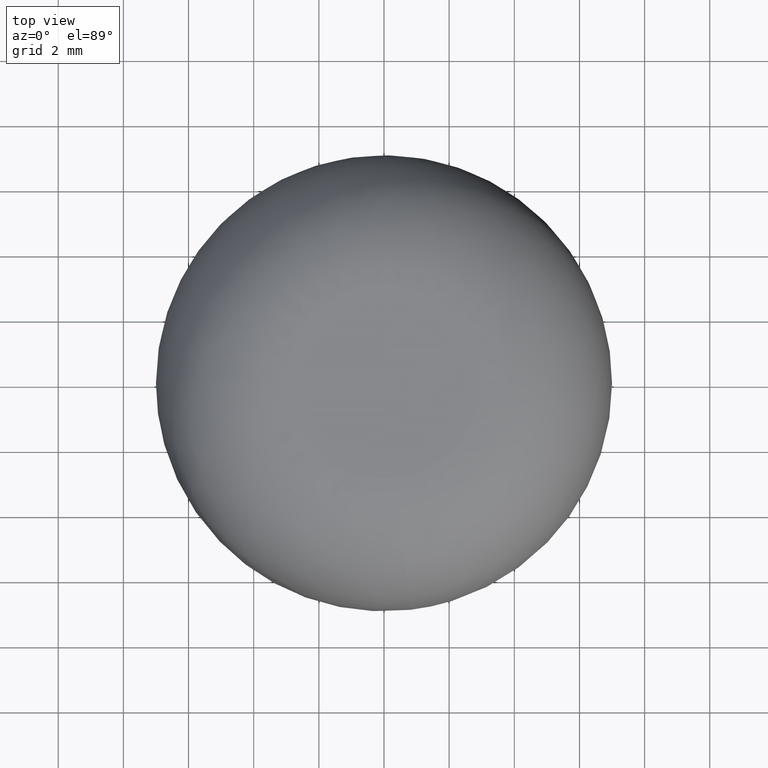
[diagram: clean part render]
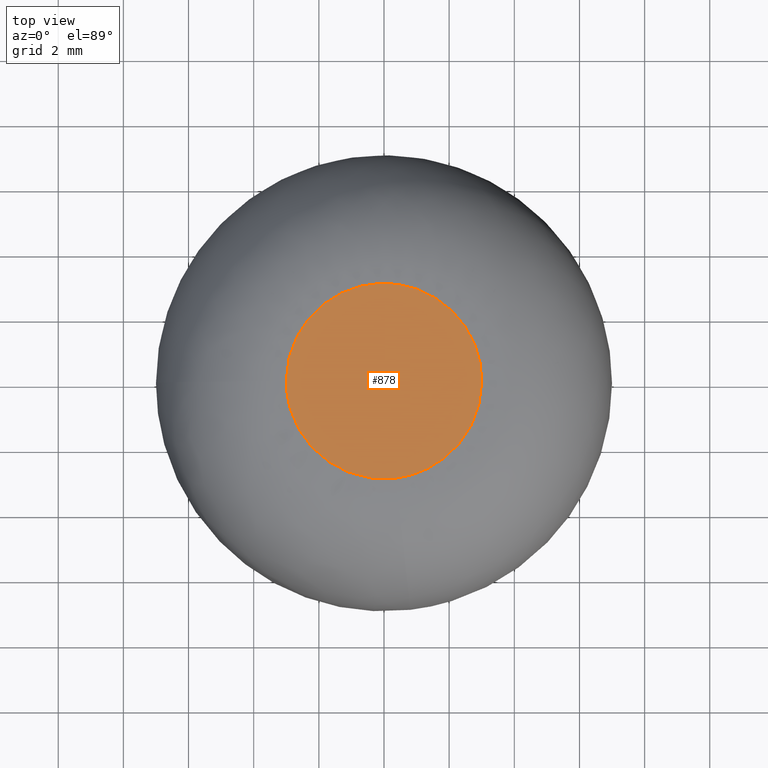
[diagram: same view with one face highlighted and labeled with its STEP entity id]
A machine part, top view. The second image highlights one B-rep face of the part: STEP entity #878.
In plain terms, the highlighted face is a freeform B-spline surface patch.
Its self-contained STEP definition (entity closure, byte-faithful):
#645=CARTESIAN_POINT('',(0.346392114872776,-2.979934009164752,10.599999999999770));
#646=VERTEX_POINT('',#645);
#647=CARTESIAN_POINT('',(-3.000000384556081,0.0,10.599999999999961));
#648=VERTEX_POINT('',#647);
#649=CARTESIAN_POINT('',(0.346392114872776,-2.979934009164752,10.599999999999765));
#650=CARTESIAN_POINT('',(0.173777254250531,-3.000000000000000,10.599999999999994));
#651=CARTESIAN_POINT('',(0.0,-3.0,10.600000000000000));
#652=CARTESIAN_POINT('',(-3.0,-3.0,10.600000000000000));
#653=CARTESIAN_POINT('',(-3.000000384556081,0.0,10.599999999999961));
#661=(BOUNDED_CURVE()B_SPLINE_CURVE(2,(#649,#650,#651,#652,#653),.UNSPECIFIED.,.F.,.U.)B_SPLINE_CURVE_WITH_KNOTS((3,2,3),(0.730000026192411,0.750000000000000,1.0),.UNSPECIFIED.)CURVE()GEOMETRIC_REPRESENTATION_ITEM()RATIONAL_B_SPLINE_CURVE((0.956886169743681,0.976568573181242,1.0,0.707106781186548,1.0))REPRESENTATION_ITEM(''));
#662=EDGE_CURVE('',#646,#648,#661,.T.);
#773=CARTESIAN_POINT('',(3.0,0.0,10.600000000000000));
#774=VERTEX_POINT('',#773);
#775=CARTESIAN_POINT('',(3.0,0.0,10.600000000000000));
#776=CARTESIAN_POINT('',(3.0,-2.671475518924087,10.600000000000000));
#777=CARTESIAN_POINT('',(0.346392114872776,-2.979934009164752,10.599999999999765));
#785=(BOUNDED_CURVE()B_SPLINE_CURVE(2,(#775,#776,#777),.UNSPECIFIED.,.F.,.U.)B_SPLINE_CURVE_WITH_KNOTS((3,3),(0.500000000000000,0.730000026192411),.UNSPECIFIED.)CURVE()GEOMETRIC_REPRESENTATION_ITEM()RATIONAL_B_SPLINE_CURVE((1.0,0.730538208005306,0.956886169743681))REPRESENTATION_ITEM(''));
#786=EDGE_CURVE('',#774,#646,#785,.T.);
#820=CARTESIAN_POINT('',(-3.000000384556081,0.0,10.599999999999961));
#821=CARTESIAN_POINT('',(-3.0,3.0,10.600000000000000));
#822=CARTESIAN_POINT('',(0.0,3.0,10.600000000000000));
#823=CARTESIAN_POINT('',(3.0,3.0,10.600000000000000));
#824=CARTESIAN_POINT('',(3.0,0.0,10.600000000000000));
#832=(BOUNDED_CURVE()B_SPLINE_CURVE(2,(#820,#821,#822,#823,#824),.UNSPECIFIED.,.F.,.U.)B_SPLINE_CURVE_WITH_KNOTS((3,2,3),(0.0,0.250000000000000,0.500000000000000),.UNSPECIFIED.)CURVE()GEOMETRIC_REPRESENTATION_ITEM()RATIONAL_B_SPLINE_CURVE((1.0,0.707106781186548,1.0,0.707106781186548,1.0))REPRESENTATION_ITEM(''));
#833=EDGE_CURVE('',#648,#774,#832,.T.);
#868=CARTESIAN_POINT('',(-3.299700504782913,-3.299682972921133,10.600000000000000));
#869=CARTESIAN_POINT('',(3.299700173871016,-3.299682972921133,10.600000000000000));
#870=CARTESIAN_POINT('',(-3.299700504782913,3.299699339778659,10.600000000000000));
#871=CARTESIAN_POINT('',(3.299700173871016,3.299699339778659,10.600000000000000));
#872=B_SPLINE_SURFACE_WITH_KNOTS('',1,1,((#868,#870),(#869,#871)),.UNSPECIFIED.,.F.,.F.,.U.,(2,2),(2,2),(0.0,6.599400678653929),(0.0,6.599382312699792),.UNSPECIFIED.);
#873=ORIENTED_EDGE('',*,*,#662,.F.);
#874=ORIENTED_EDGE('',*,*,#786,.F.);
#875=ORIENTED_EDGE('',*,*,#833,.F.);
#876=EDGE_LOOP('',(#873,#874,#875));
#877=FACE_OUTER_BOUND('',#876,.T.);
#878=ADVANCED_FACE('',(#877),#872,.T.);